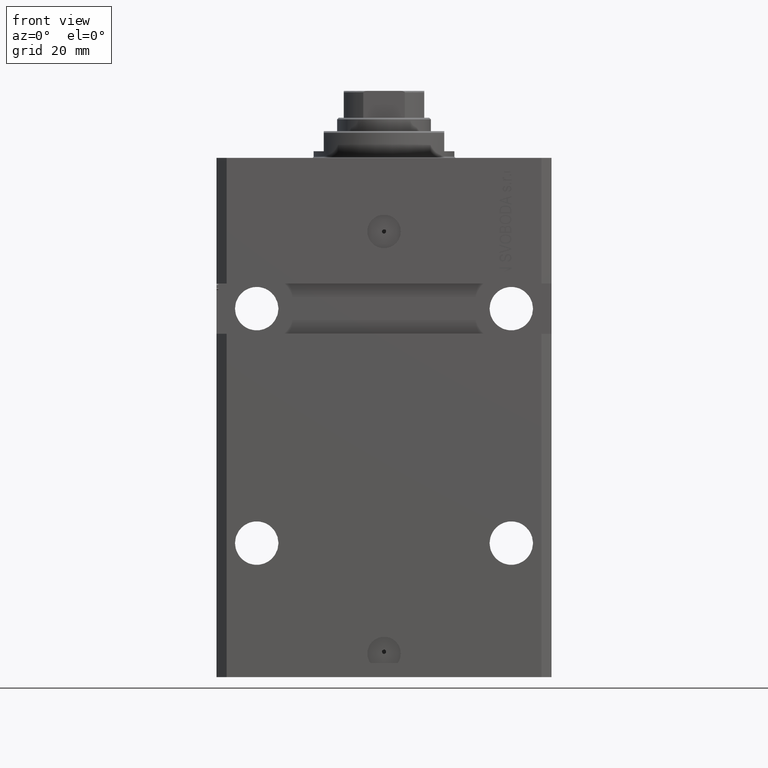
[diagram: clean part render]
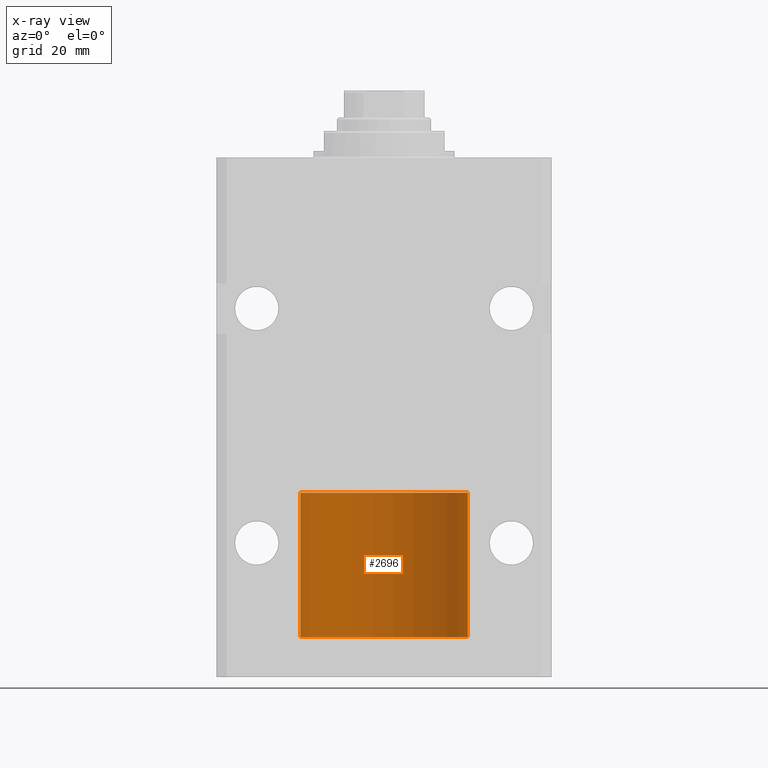
[diagram: x-ray — body ghosted, one internal face saturated and labeled with its STEP entity id]
A machine part, front view, then the same camera in x-ray: the body is ghosted and one INTERNAL B-rep face — a face not visible from any outside direction — is saturated and labeled: STEP entity #2696.
In plain terms, the highlighted cylindrical surface (partial cylindrical patch) has radius 25 mm, axis along (-0, -0, -1).
Its self-contained STEP definition (entity closure, byte-faithful):
#2687 = CARTESIAN_POINT ( 'NONE',  ( 25.00000000000000000, 3.061616997868383043E-15, 43.10000000000000142 ) ) ;
#2696 = ADVANCED_FACE ( 'NONE', ( #44189 ), #15123, .T. ) ;
#2907 = DIRECTION ( 'NONE',  ( -0.000000000000000000, -0.000000000000000000, -1.000000000000000000 ) ) ;
#3380 = CARTESIAN_POINT ( 'NONE',  ( 25.00000000000000000, 3.061616997868383043E-15, 43.10000000000000142 ) ) ;
#5615 = LINE ( 'NONE', #47298, #15265 ) ;
#5687 = CIRCLE ( 'NONE', #8806, 25.00000000000000000 ) ;
#6519 = VECTOR ( 'NONE', #2907, 1000.000000000000000 ) ;
#7377 = DIRECTION ( 'NONE',  ( 1.000000000000000000, 0.000000000000000000, 0.000000000000000000 ) ) ;
#8806 = AXIS2_PLACEMENT_3D ( 'NONE', #41757, #19061, #37606 ) ;
#9926 = VERTEX_POINT ( 'NONE', #28015 ) ;
#10379 = ORIENTED_EDGE ( 'NONE', *, *, #46782, .F. ) ;
#10397 = EDGE_LOOP ( 'NONE', ( #10379, #19557, #25762, #34192 ) ) ;
#10696 = AXIS2_PLACEMENT_3D ( 'NONE', #14670, #18337, #7377 ) ;
#10983 = DIRECTION ( 'NONE',  ( -1.000000000000000000, 0.000000000000000000, 0.000000000000000000 ) ) ;
#14095 = LINE ( 'NONE', #3380, #6519 ) ;
#14670 = CARTESIAN_POINT ( 'NONE',  ( 0.000000000000000000, 0.000000000000000000, 43.10000000000000142 ) ) ;
#15123 = CYLINDRICAL_SURFACE ( 'NONE', #23456, 25.00000000000000000 ) ;
#15265 = VECTOR ( 'NONE', #28280, 1000.000000000000000 ) ;
#18337 = DIRECTION ( 'NONE',  ( 0.000000000000000000, 0.000000000000000000, 1.000000000000000000 ) ) ;
#18745 = CARTESIAN_POINT ( 'NONE',  ( 25.00000000000000000, 3.061616997868383043E-15, 0.000000000000000000 ) ) ;
#18974 = EDGE_CURVE ( 'NONE', #45364, #9926, #5615, .T. ) ;
#19061 = DIRECTION ( 'NONE',  ( 0.000000000000000000, 0.000000000000000000, 1.000000000000000000 ) ) ;
#19557 = ORIENTED_EDGE ( 'NONE', *, *, #34804, .T. ) ;
#23456 = AXIS2_PLACEMENT_3D ( 'NONE', #36845, #29533, #10983 ) ;
#25762 = ORIENTED_EDGE ( 'NONE', *, *, #33592, .T. ) ;
#26937 = VERTEX_POINT ( 'NONE', #18745 ) ;
#28015 = CARTESIAN_POINT ( 'NONE',  ( -25.00000000000000000, 0.000000000000000000, 0.000000000000000000 ) ) ;
#28280 = DIRECTION ( 'NONE',  ( -0.000000000000000000, -0.000000000000000000, -1.000000000000000000 ) ) ;
#29533 = DIRECTION ( 'NONE',  ( -0.000000000000000000, -0.000000000000000000, -1.000000000000000000 ) ) ;
#31740 = CIRCLE ( 'NONE', #10696, 25.00000000000000000 ) ;
#33592 = EDGE_CURVE ( 'NONE', #26937, #9926, #5687, .T. ) ;
#34192 = ORIENTED_EDGE ( 'NONE', *, *, #18974, .F. ) ;
#34804 = EDGE_CURVE ( 'NONE', #36099, #26937, #14095, .T. ) ;
#36099 = VERTEX_POINT ( 'NONE', #2687 ) ;
#36845 = CARTESIAN_POINT ( 'NONE',  ( 0.000000000000000000, 0.000000000000000000, 43.10000000000000142 ) ) ;
#37606 = DIRECTION ( 'NONE',  ( 1.000000000000000000, 0.000000000000000000, 0.000000000000000000 ) ) ;
#40654 = CARTESIAN_POINT ( 'NONE',  ( -25.00000000000000000, 0.000000000000000000, 43.10000000000000142 ) ) ;
#41757 = CARTESIAN_POINT ( 'NONE',  ( 0.000000000000000000, 0.000000000000000000, 0.000000000000000000 ) ) ;
#44189 = FACE_OUTER_BOUND ( 'NONE', #10397, .T. ) ;
#45364 = VERTEX_POINT ( 'NONE', #40654 ) ;
#46782 = EDGE_CURVE ( 'NONE', #36099, #45364, #31740, .T. ) ;
#47298 = CARTESIAN_POINT ( 'NONE',  ( -25.00000000000000000, 0.000000000000000000, 43.10000000000000142 ) ) ;